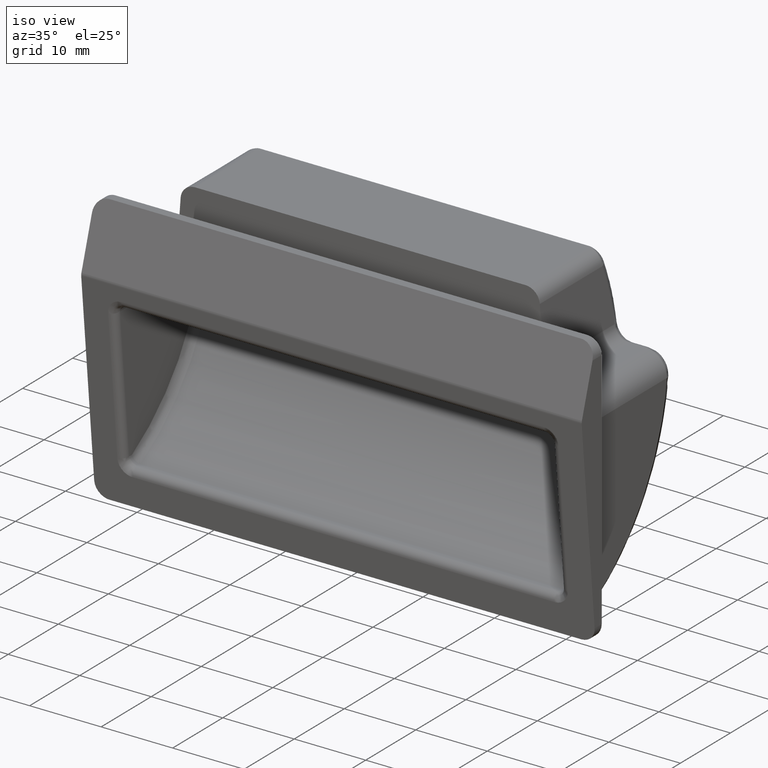
[diagram: clean part render]
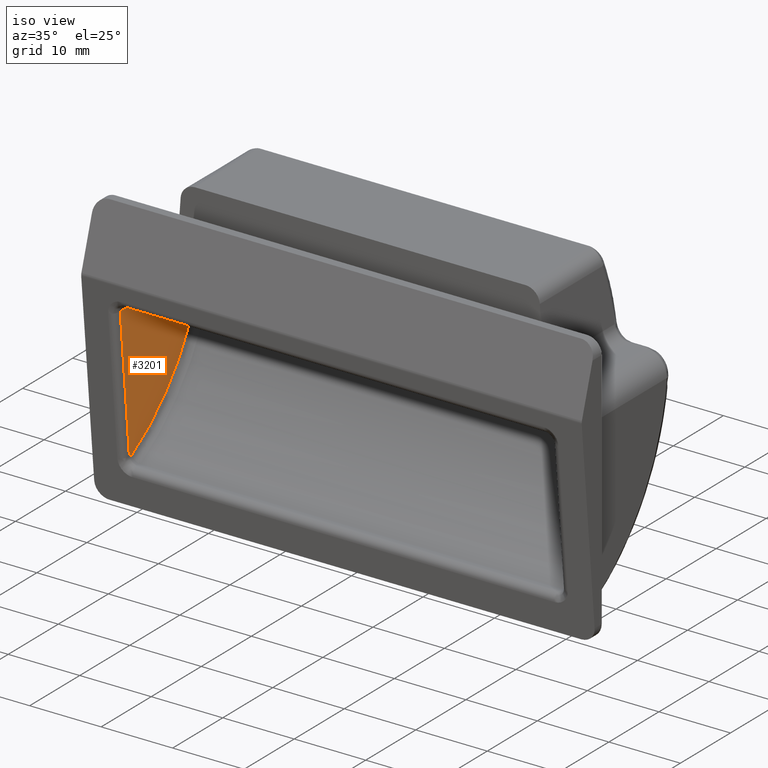
[diagram: same view with one face highlighted and labeled with its STEP entity id]
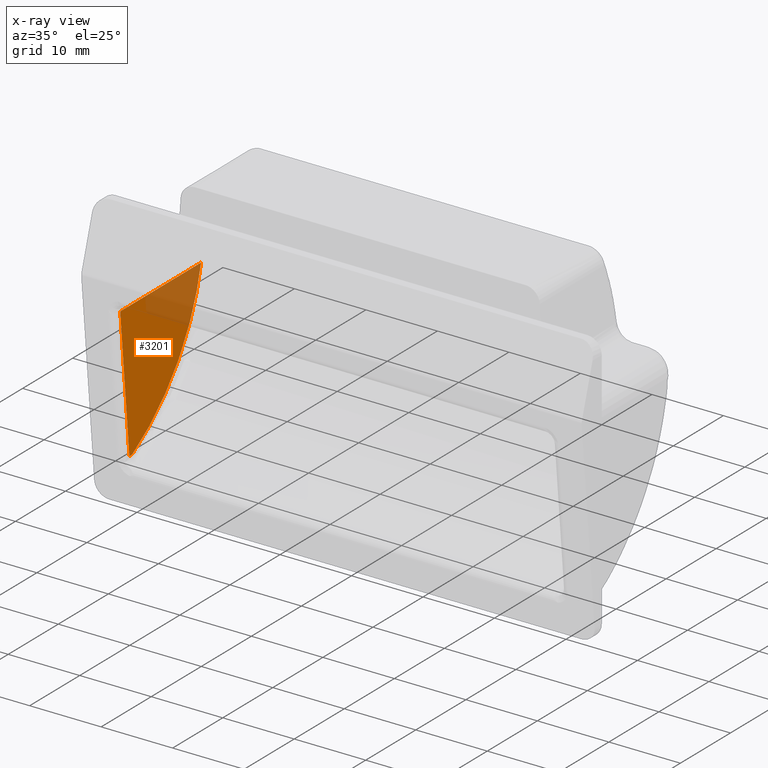
[diagram: x-ray of the same camera — body ghosted, the highlighted face saturated]
A machine part, iso view. The second image highlights one B-rep face of the part: STEP entity #3201.
The next image is the same camera in x-ray: the body ghosted, the highlighted face saturated — about 25% of this face is hidden behind the body in this view.
In plain terms, the highlighted face is a freeform B-spline surface patch.
Its self-contained STEP definition (entity closure, byte-faithful):
#3158=CARTESIAN_POINT('',(-30.500000000000000,-3.430230354591937,6.199049963174312));
#3159=CARTESIAN_POINT('',(-30.500000000000000,14.325423174570110,6.199049963174312));
#3160=CARTESIAN_POINT('',(-30.500000000000000,-3.430230354591937,-14.699050472794021));
#3161=CARTESIAN_POINT('',(-30.500000000000000,14.325423174570110,-14.699050472794021));
#3162=B_SPLINE_SURFACE_WITH_KNOTS('',1,1,((#3158,#3160),(#3159,#3161)),.UNSPECIFIED.,.F.,.F.,.U.,(2,2),(2,2),(0.0,17.755653529162039),(0.0,20.898100435968342),.UNSPECIFIED.);
#3163=CARTESIAN_POINT('',(-30.500000000000000,-0.261514370292942,-13.750000000000000));
#3164=VERTEX_POINT('',#3163);
#3165=CARTESIAN_POINT('',(-30.500000000000000,13.519081400673020,5.250000000000000));
#3166=VERTEX_POINT('',#3165);
#3167=CARTESIAN_POINT('',(-30.500000000000000,-0.261514370292986,-13.749999999999931));
#3168=CARTESIAN_POINT('',(-30.500000000000004,10.952925181340408,-7.386276229347873));
#3169=CARTESIAN_POINT('',(-30.500000000000000,13.519081400673031,5.249999999999996));
#3177=(BOUNDED_CURVE()B_SPLINE_CURVE(2,(#3167,#3168,#3169),.UNSPECIFIED.,.F.,.U.)CURVE()GEOMETRIC_REPRESENTATION_ITEM()QUASI_UNIFORM_CURVE()RATIONAL_B_SPLINE_CURVE((1.0,0.910151257160863,1.0))REPRESENTATION_ITEM(''));
#3178=EDGE_CURVE('',#3164,#3166,#3177,.T.);
#3179=ORIENTED_EDGE('',*,*,#3178,.T.);
#3180=CARTESIAN_POINT('',(-30.500000000000000,-2.623889013683060,5.250000000000000));
#3181=VERTEX_POINT('',#3180);
#3182=CARTESIAN_POINT('',(-30.500000000000000,13.519081400673020,5.250000000000000));
#3183=CARTESIAN_POINT('',(-30.500000000000000,-2.623889013683060,5.250000000000000));
#3184=QUASI_UNIFORM_CURVE('',1,(#3182,#3183),.UNSPECIFIED.,.F.,.U.);
#3185=EDGE_CURVE('',#3166,#3181,#3184,.T.);
#3186=ORIENTED_EDGE('',*,*,#3185,.T.);
#3187=CARTESIAN_POINT('',(-30.500000000000000,-0.789406255062316,-13.750000000000000));
#3188=VERTEX_POINT('',#3187);
#3189=CARTESIAN_POINT('',(-30.500000000000000,-2.623889013683060,5.250000000000000));
#3190=CARTESIAN_POINT('',(-30.500000000000000,-0.789406255062316,-13.750000000000000));
#3191=QUASI_UNIFORM_CURVE('',1,(#3189,#3190),.UNSPECIFIED.,.F.,.U.);
#3192=EDGE_CURVE('',#3181,#3188,#3191,.T.);
#3193=ORIENTED_EDGE('',*,*,#3192,.T.);
#3194=CARTESIAN_POINT('',(-30.500000000000000,-0.789406255062316,-13.750000000000000));
#3195=CARTESIAN_POINT('',(-30.500000000000000,-0.261514370292942,-13.750000000000000));
#3196=QUASI_UNIFORM_CURVE('',1,(#3194,#3195),.UNSPECIFIED.,.F.,.U.);
#3197=EDGE_CURVE('',#3188,#3164,#3196,.T.);
#3198=ORIENTED_EDGE('',*,*,#3197,.T.);
#3199=EDGE_LOOP('',(#3179,#3186,#3193,#3198));
#3200=FACE_OUTER_BOUND('',#3199,.T.);
#3201=ADVANCED_FACE('',(#3200),#3162,.F.);